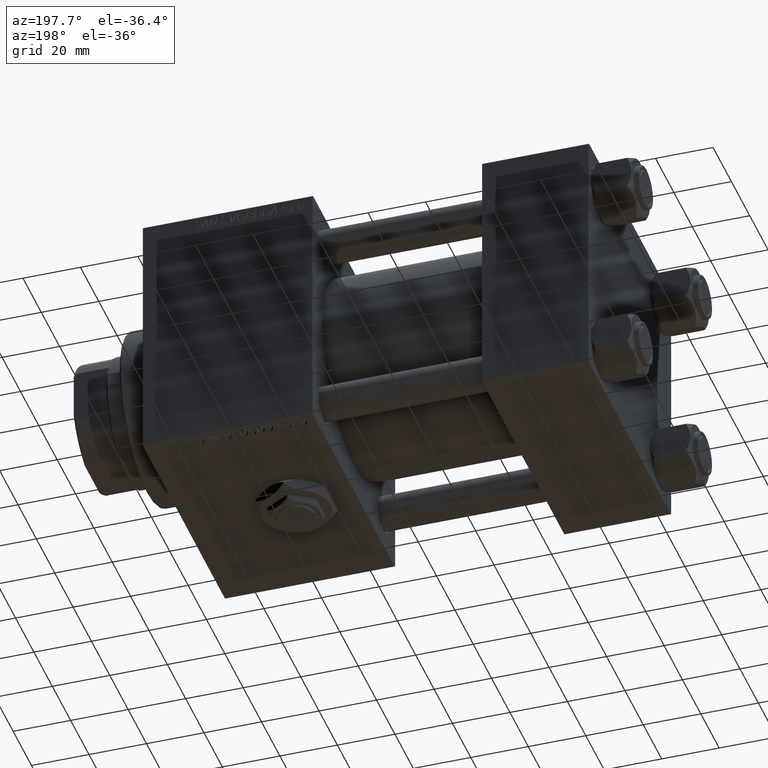
[diagram: clean part render]
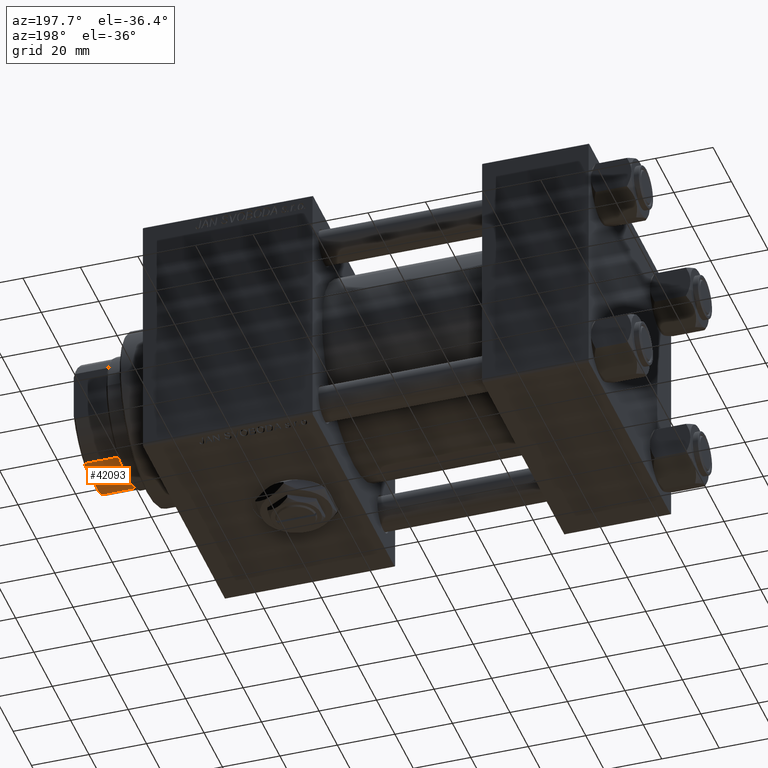
[diagram: same view with one face highlighted and labeled with its STEP entity id]
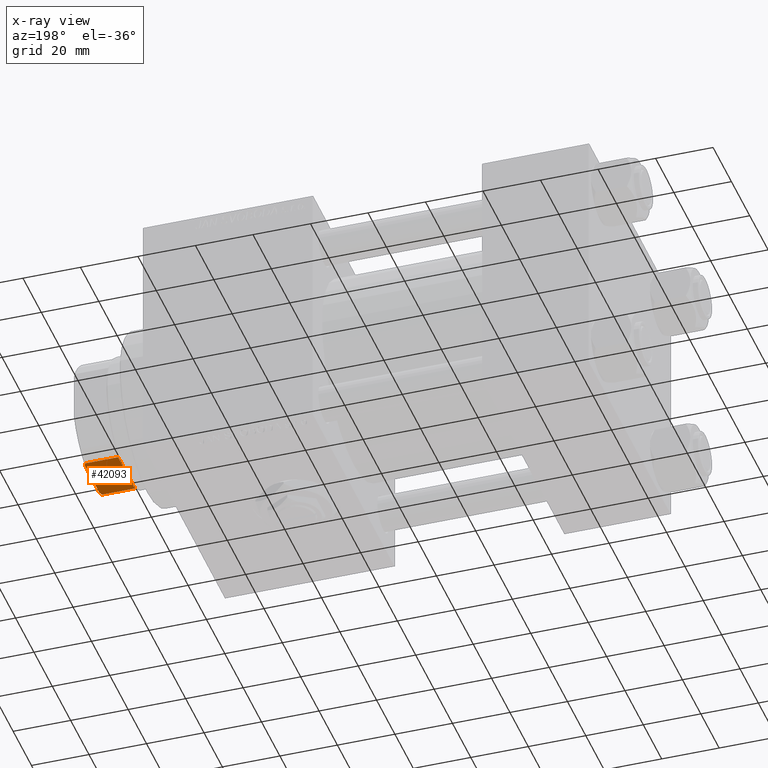
[diagram: x-ray of the same camera — body ghosted, the highlighted face saturated]
A machine part, auxiliary view. The second image highlights one B-rep face of the part: STEP entity #42093.
The next image is the same camera in x-ray: the body ghosted, the highlighted face saturated — about 0% of this face is hidden behind the body in this view.
In plain terms, the highlighted planar face has unit normal (0, -0, 1).
Its self-contained STEP definition (entity closure, byte-faithful):
#3031 = EDGE_CURVE ( 'NONE', #51420, #36929, #34204, .T. ) ;
#3049 = ORIENTED_EDGE ( 'NONE', *, *, #3031, .T. ) ;
#3580 = CARTESIAN_POINT ( 'NONE',  ( -8.318618722654449016, 20.00000000000000000, 149.8426607129352703 ) ) ;
#4262 = LINE ( 'NONE', #15812, #51404 ) ;
#4347 = CARTESIAN_POINT ( 'NONE',  ( -9.165151389911676105, 20.00000000000000000, -0.001000000000001000089 ) ) ;
#5133 = VECTOR ( 'NONE', #25478, 1000.000000000000000 ) ;
#6287 = ORIENTED_EDGE ( 'NONE', *, *, #6794, .T. ) ;
#6547 = LINE ( 'NONE', #34336, #44004 ) ;
#6794 = EDGE_CURVE ( 'NONE', #18464, #51420, #39751, .T. ) ;
#8413 = EDGE_LOOP ( 'NONE', ( #18297, #14799, #17208, #19971, #6287, #3049 ) ) ;
#8427 = VERTEX_POINT ( 'NONE', #28790 ) ;
#8556 = EDGE_CURVE ( 'NONE', #17668, #12259, #48768, .T. ) ;
#9494 = CARTESIAN_POINT ( 'NONE',  ( 9.165151389911676105, 20.00000000000000000, 149.5000000000000568 ) ) ;
#10655 = CARTESIAN_POINT ( 'NONE',  ( -20.00000000000000355, 20.00000000000000000, 150.0000000000000284 ) ) ;
#10913 = DIRECTION ( 'NONE',  ( 0.000000000000000000, -0.000000000000000000, -1.000000000000000000 ) ) ;
#11329 = CARTESIAN_POINT ( 'NONE',  ( 8.318618722654450792, 20.00000000000000000, 149.8426607129352419 ) ) ;
#12259 = VERTEX_POINT ( 'NONE', #9494 ) ;
#14363 = VECTOR ( 'NONE', #15892, 1000.000000000000000 ) ;
#14799 = ORIENTED_EDGE ( 'NONE', *, *, #8556, .T. ) ;
#14820 = AXIS2_PLACEMENT_3D ( 'NONE', #10655, #26921, #10913 ) ;
#15812 = CARTESIAN_POINT ( 'NONE',  ( 9.165151389911676105, 20.00000000000000000, -0.001000000000001000089 ) ) ;
#15892 = DIRECTION ( 'NONE',  ( -0.000000000000000000, -0.000000000000000000, 1.000000000000000000 ) ) ;
#16299 = CARTESIAN_POINT ( 'NONE',  ( 8.743570658524376427, 20.00000000000000000, 149.6756296011925258 ) ) ;
#17208 = ORIENTED_EDGE ( 'NONE', *, *, #29456, .F. ) ;
#17668 = VERTEX_POINT ( 'NONE', #49753 ) ;
#18297 = ORIENTED_EDGE ( 'NONE', *, *, #22809, .F. ) ;
#18464 = VERTEX_POINT ( 'NONE', #47503 ) ;
#19184 = CARTESIAN_POINT ( 'NONE',  ( 7.889866919029809189, 20.00000000000000000, 150.0000000000000284 ) ) ;
#19971 = ORIENTED_EDGE ( 'NONE', *, *, #35638, .T. ) ;
#22714 = PLANE ( 'NONE',  #14820 ) ;
#22809 = EDGE_CURVE ( 'NONE', #17668, #36929, #45136, .T. ) ;
#25219 = CARTESIAN_POINT ( 'NONE',  ( -7.889866919029809189, 20.00000000000000000, 150.0000000000000284 ) ) ;
#25478 = DIRECTION ( 'NONE',  ( -1.000000000000000000, -0.000000000000000000, -0.000000000000000000 ) ) ;
#26921 = DIRECTION ( 'NONE',  ( 0.000000000000000000, -1.000000000000000000, 0.000000000000000000 ) ) ;
#27454 = CARTESIAN_POINT ( 'NONE',  ( -9.165151389911676105, 20.00000000000000000, 149.5000000000000568 ) ) ;
#28374 = CARTESIAN_POINT ( 'NONE',  ( 9.165151389911676105, 20.00000000000000000, 149.5000000000000568 ) ) ;
#28790 = CARTESIAN_POINT ( 'NONE',  ( 9.165151389911676105, 20.00000000000000000, 138.0000000000000568 ) ) ;
#29456 = EDGE_CURVE ( 'NONE', #8427, #12259, #4262, .T. ) ;
#29901 = DIRECTION ( 'NONE',  ( -1.000000000000000000, -0.000000000000000000, -0.000000000000000000 ) ) ;
#33345 = CARTESIAN_POINT ( 'NONE',  ( -20.00000000000000355, 20.00000000000000000, 150.0000000000000284 ) ) ;
#34204 = B_SPLINE_CURVE_WITH_KNOTS ( 'NONE', 3,
 ( #27454, #39236, #3580, #43950 ),
 .UNSPECIFIED., .F., .F.,
 ( 4, 4 ),
 ( 0.000000000000000000, 0.001369799431184149686 ),
 .UNSPECIFIED. ) ;
#34336 = CARTESIAN_POINT ( 'NONE',  ( -20.00000000000000355, 20.00000000000000000, 138.0000000000000000 ) ) ;
#35638 = EDGE_CURVE ( 'NONE', #8427, #18464, #6547, .T. ) ;
#36632 = CARTESIAN_POINT ( 'NONE',  ( -9.165151389911676105, 20.00000000000000000, 149.5000000000000568 ) ) ;
#36929 = VERTEX_POINT ( 'NONE', #25219 ) ;
#39236 = CARTESIAN_POINT ( 'NONE',  ( -8.743570658524374650, 20.00000000000000000, 149.6756296011925258 ) ) ;
#39751 = LINE ( 'NONE', #4347, #14363 ) ;
#42093 = ADVANCED_FACE ( 'NONE', ( #49731 ), #22714, .F. ) ;
#43950 = CARTESIAN_POINT ( 'NONE',  ( -7.889866919029809189, 20.00000000000000000, 150.0000000000000284 ) ) ;
#44004 = VECTOR ( 'NONE', #29901, 1000.000000000000000 ) ;
#45136 = LINE ( 'NONE', #33345, #5133 ) ;
#47503 = CARTESIAN_POINT ( 'NONE',  ( -9.165151389911674329, 20.00000000000000000, 138.0000000000000568 ) ) ;
#47529 = DIRECTION ( 'NONE',  ( -0.000000000000000000, -0.000000000000000000, 1.000000000000000000 ) ) ;
#48768 = B_SPLINE_CURVE_WITH_KNOTS ( 'NONE', 3,
 ( #19184, #11329, #16299, #28374 ),
 .UNSPECIFIED., .F., .F.,
 ( 4, 4 ),
 ( 0.000000000000000000, 0.001369799431184147518 ),
 .UNSPECIFIED. ) ;
#49731 = FACE_OUTER_BOUND ( 'NONE', #8413, .T. ) ;
#49753 = CARTESIAN_POINT ( 'NONE',  ( 7.889866919029809189, 20.00000000000000000, 150.0000000000000284 ) ) ;
#51404 = VECTOR ( 'NONE', #47529, 1000.000000000000000 ) ;
#51420 = VERTEX_POINT ( 'NONE', #36632 ) ;